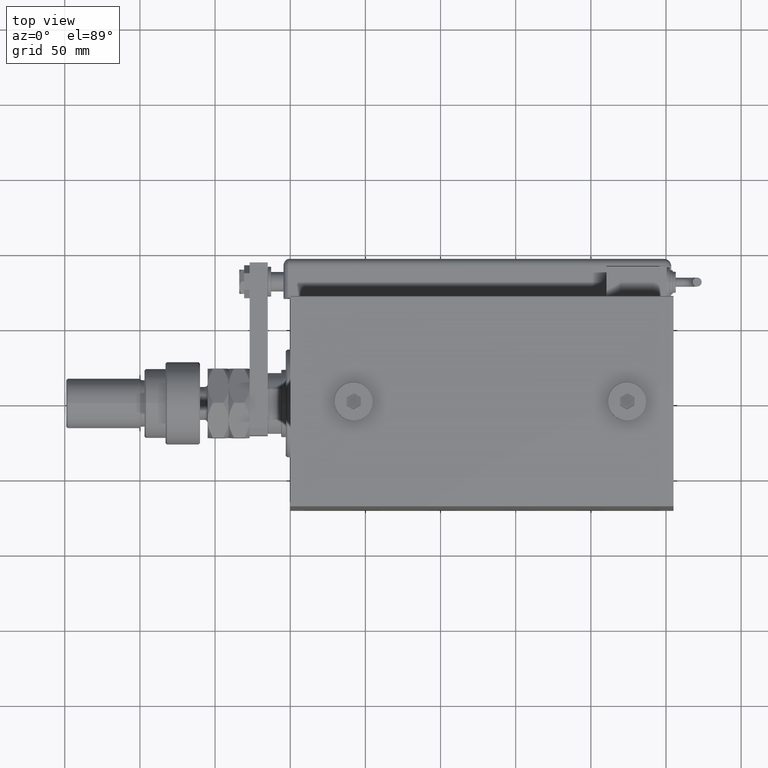
[diagram: clean part render]
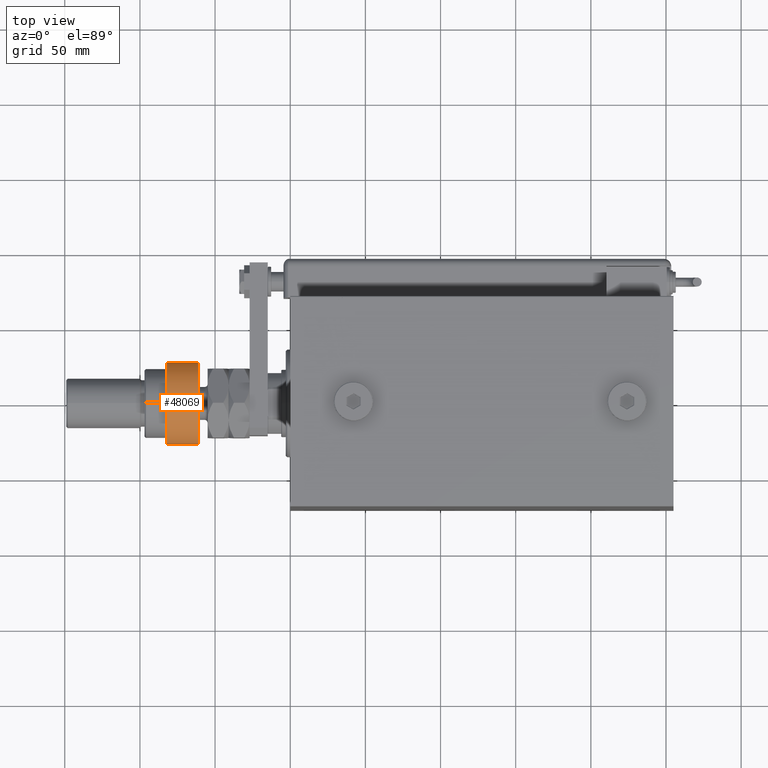
[diagram: same view with one face highlighted and labeled with its STEP entity id]
A machine part, top view. The second image highlights one B-rep face of the part: STEP entity #48069.
In plain terms, the highlighted cylindrical surface (partial cylindrical patch) has radius 27.5 mm, axis along (1, -0, -0).
Its self-contained STEP definition (entity closure, byte-faithful):
#1444 = DIRECTION ( 'NONE',  ( -0.000000000000000000, -0.000000000000000000, 1.000000000000000000 ) ) ;
#1836 = EDGE_CURVE ( 'NONE', #35146, #6105, #44734, .T. ) ;
#2772 = VECTOR ( 'NONE', #13836, 1000.000000000000000 ) ;
#3376 = DIRECTION ( 'NONE',  ( -0.000000000000000000, -0.000000000000000000, 1.000000000000000000 ) ) ;
#6105 = VERTEX_POINT ( 'NONE', #45780 ) ;
#6768 = DIRECTION ( 'NONE',  ( 0.000000000000000000, 0.000000000000000000, -1.000000000000000000 ) ) ;
#10780 = AXIS2_PLACEMENT_3D ( 'NONE', #64446, #15571, #50385 ) ;
#13836 = DIRECTION ( 'NONE',  ( -0.000000000000000000, -0.000000000000000000, -1.000000000000000000 ) ) ;
#15571 = DIRECTION ( 'NONE',  ( -0.000000000000000000, -0.000000000000000000, -1.000000000000000000 ) ) ;
#16537 = DIRECTION ( 'NONE',  ( 1.000000000000000000, 0.000000000000000000, 0.000000000000000000 ) ) ;
#16951 = ORIENTED_EDGE ( 'NONE', *, *, #20136, .T. ) ;
#18484 = EDGE_CURVE ( 'NONE', #52039, #35146, #20385, .T. ) ;
#19117 = ORIENTED_EDGE ( 'NONE', *, *, #27939, .F. ) ;
#20136 = EDGE_CURVE ( 'NONE', #60676, #52039, #63348, .T. ) ;
#20385 = CIRCLE ( 'NONE', #54676, 27.50000000000000000 ) ;
#23331 = ORIENTED_EDGE ( 'NONE', *, *, #18484, .T. ) ;
#24707 = CYLINDRICAL_SURFACE ( 'NONE', #10780, 27.50000000000000000 ) ;
#24714 = EDGE_LOOP ( 'NONE', ( #19117, #44220, #16951, #23331, #45973 ) ) ;
#27059 = DIRECTION ( 'NONE',  ( -0.000000000000000000, -0.000000000000000000, -1.000000000000000000 ) ) ;
#27143 = CIRCLE ( 'NONE', #31262, 27.50000000000000000 ) ;
#27939 = EDGE_CURVE ( 'NONE', #34068, #6105, #46589, .T. ) ;
#31199 = AXIS2_PLACEMENT_3D ( 'NONE', #37206, #3376, #57402 ) ;
#31262 = AXIS2_PLACEMENT_3D ( 'NONE', #62119, #6768, #16537 ) ;
#33816 = CARTESIAN_POINT ( 'NONE',  ( -24.97999199359358968, -11.50000000000000888, 1.000000000000000888 ) ) ;
#34014 = CARTESIAN_POINT ( 'NONE',  ( -24.97999199359358968, -11.50000000000000888, 27.50000000000000000 ) ) ;
#34068 = VERTEX_POINT ( 'NONE', #64227 ) ;
#35146 = VERTEX_POINT ( 'NONE', #38258 ) ;
#36825 = CARTESIAN_POINT ( 'NONE',  ( -24.97999199359359324, 11.50000000000000000, 27.50000000000000000 ) ) ;
#37206 = CARTESIAN_POINT ( 'NONE',  ( 0.000000000000000000, 0.000000000000000000, 1.000000000000000888 ) ) ;
#38134 = EDGE_CURVE ( 'NONE', #34068, #60676, #27143, .T. ) ;
#38258 = CARTESIAN_POINT ( 'NONE',  ( 27.50000000000000000, 0.000000000000000000, 1.000000000000000888 ) ) ;
#44220 = ORIENTED_EDGE ( 'NONE', *, *, #38134, .T. ) ;
#44734 = CIRCLE ( 'NONE', #31199, 27.50000000000000000 ) ;
#45780 = CARTESIAN_POINT ( 'NONE',  ( -24.97999199359359324, 11.50000000000000000, 1.000000000000000888 ) ) ;
#45973 = ORIENTED_EDGE ( 'NONE', *, *, #1836, .T. ) ;
#46589 = LINE ( 'NONE', #36825, #55769 ) ;
#48069 = ADVANCED_FACE ( 'NONE', ( #49430 ), #24707, .T. ) ;
#49430 = FACE_OUTER_BOUND ( 'NONE', #24714, .T. ) ;
#50385 = DIRECTION ( 'NONE',  ( -1.000000000000000000, 0.000000000000000000, 0.000000000000000000 ) ) ;
#52039 = VERTEX_POINT ( 'NONE', #33816 ) ;
#53354 = CARTESIAN_POINT ( 'NONE',  ( -24.97999199359358968, -11.50000000000000888, 22.00000000000003908 ) ) ;
#54676 = AXIS2_PLACEMENT_3D ( 'NONE', #60055, #1444, #59735 ) ;
#55769 = VECTOR ( 'NONE', #27059, 1000.000000000000000 ) ;
#57402 = DIRECTION ( 'NONE',  ( 1.000000000000000000, 0.000000000000000000, 0.000000000000000000 ) ) ;
#59735 = DIRECTION ( 'NONE',  ( 1.000000000000000000, 0.000000000000000000, 0.000000000000000000 ) ) ;
#60055 = CARTESIAN_POINT ( 'NONE',  ( 0.000000000000000000, 0.000000000000000000, 1.000000000000000888 ) ) ;
#60676 = VERTEX_POINT ( 'NONE', #53354 ) ;
#62119 = CARTESIAN_POINT ( 'NONE',  ( 0.000000000000000000, 0.000000000000000000, 22.00000000000003908 ) ) ;
#63348 = LINE ( 'NONE', #34014, #2772 ) ;
#64227 = CARTESIAN_POINT ( 'NONE',  ( -24.97999199359359324, 11.50000000000000000, 22.00000000000003908 ) ) ;
#64446 = CARTESIAN_POINT ( 'NONE',  ( 0.000000000000000000, 0.000000000000000000, 23.00000000000000000 ) ) ;